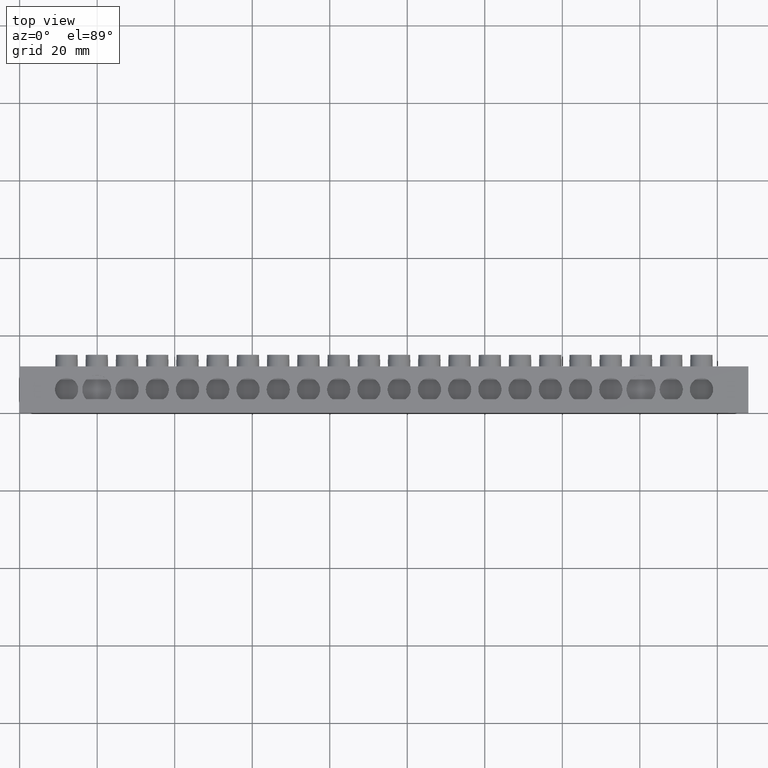
[diagram: clean part render]
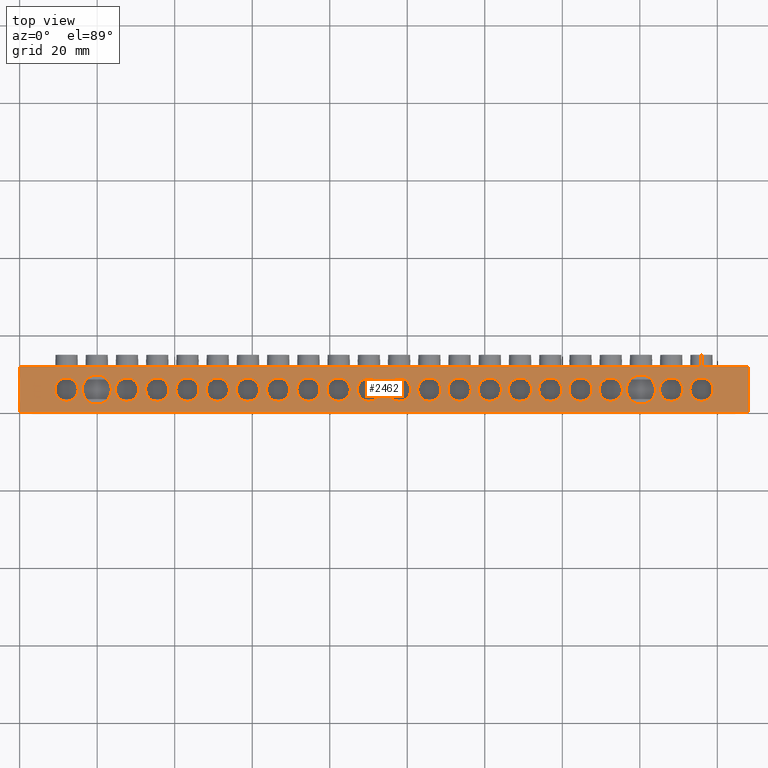
[diagram: same view with one face highlighted and labeled with its STEP entity id]
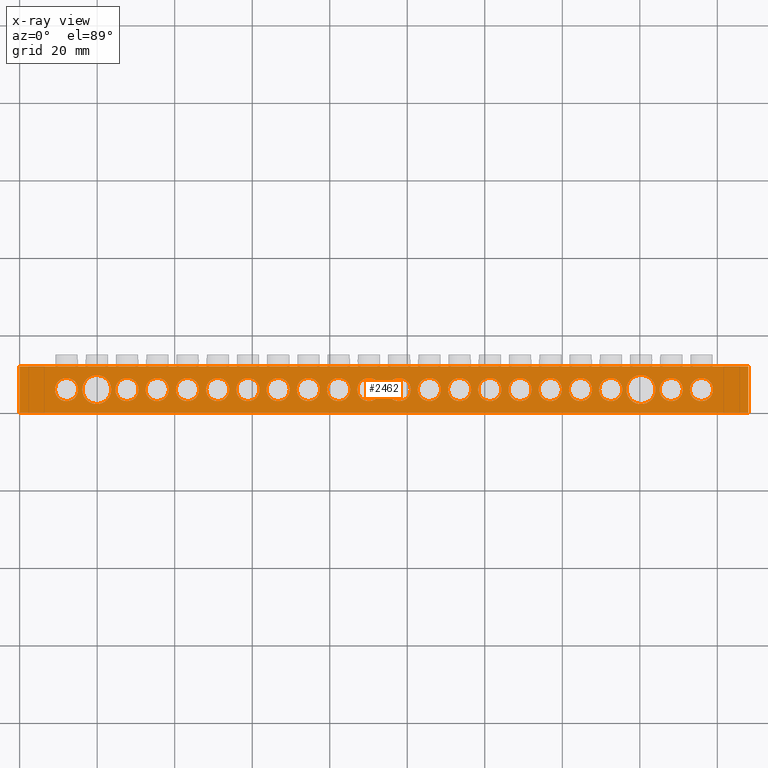
[diagram: x-ray of the same camera — body ghosted, the highlighted face saturated]
A machine part, top view. The second image highlights one B-rep face of the part: STEP entity #2462.
The next image is the same camera in x-ray: the body ghosted, the highlighted face saturated — about 0% of this face is hidden behind the body in this view.
In plain terms, the highlighted planar face has unit normal (0, 0, -1).
Its self-contained STEP definition (entity closure, byte-faithful):
#473 = CIRCLE ( 'NONE', #503, 2.999999999999988900 ) ;
#503 = AXIS2_PLACEMENT_3D ( 'NONE', #12412, #12397, #12405 ) ;
#523 = AXIS2_PLACEMENT_3D ( 'NONE', #12448, #12380, #12381 ) ;
#547 = CIRCLE ( 'NONE', #523, 2.999999999999995600 ) ;
#564 = CIRCLE ( 'NONE', #611, 2.999999999999988900 ) ;
#577 = CIRCLE ( 'NONE', #613, 2.999999999999988900 ) ;
#589 = ORIENTED_EDGE ( 'NONE', *, *, #1888, .F. ) ;
#590 = ORIENTED_EDGE ( 'NONE', *, *, #2530, .F. ) ;
#591 = ORIENTED_EDGE ( 'NONE', *, *, #2678, .F. ) ;
#601 = ORIENTED_EDGE ( 'NONE', *, *, #2506, .F. ) ;
#605 = ORIENTED_EDGE ( 'NONE', *, *, #2436, .F. ) ;
#611 = AXIS2_PLACEMENT_3D ( 'NONE', #12577, #12580, #12589 ) ;
#613 = AXIS2_PLACEMENT_3D ( 'NONE', #12554, #12596, #12523 ) ;
#621 = ORIENTED_EDGE ( 'NONE', *, *, #2680, .F. ) ;
#624 = ORIENTED_EDGE ( 'NONE', *, *, #2671, .F. ) ;
#626 = ORIENTED_EDGE ( 'NONE', *, *, #2500, .F. ) ;
#629 = ORIENTED_EDGE ( 'NONE', *, *, #2529, .F. ) ;
#630 = ORIENTED_EDGE ( 'NONE', *, *, #2710, .F. ) ;
#637 = ORIENTED_EDGE ( 'NONE', *, *, #2668, .F. ) ;
#639 = ORIENTED_EDGE ( 'NONE', *, *, #2478, .F. ) ;
#640 = ORIENTED_EDGE ( 'NONE', *, *, #2513, .F. ) ;
#644 = ORIENTED_EDGE ( 'NONE', *, *, #2666, .F. ) ;
#646 = ORIENTED_EDGE ( 'NONE', *, *, #2452, .F. ) ;
#649 = ORIENTED_EDGE ( 'NONE', *, *, #2688, .F. ) ;
#650 = ORIENTED_EDGE ( 'NONE', *, *, #2494, .F. ) ;
#652 = ORIENTED_EDGE ( 'NONE', *, *, #2498, .F. ) ;
#653 = ORIENTED_EDGE ( 'NONE', *, *, #1852, .F. ) ;
#654 = ORIENTED_EDGE ( 'NONE', *, *, #1851, .F. ) ;
#656 = ORIENTED_EDGE ( 'NONE', *, *, #2724, .F. ) ;
#660 = ORIENTED_EDGE ( 'NONE', *, *, #2176, .F. ) ;
#661 = ORIENTED_EDGE ( 'NONE', *, *, #2667, .F. ) ;
#662 = ORIENTED_EDGE ( 'NONE', *, *, #2665, .F. ) ;
#663 = ORIENTED_EDGE ( 'NONE', *, *, #2496, .F. ) ;
#667 = ORIENTED_EDGE ( 'NONE', *, *, #2716, .F. ) ;
#668 = ORIENTED_EDGE ( 'NONE', *, *, #2697, .F. ) ;
#669 = ORIENTED_EDGE ( 'NONE', *, *, #2197, .F. ) ;
#670 = ORIENTED_EDGE ( 'NONE', *, *, #2708, .F. ) ;
#672 = ORIENTED_EDGE ( 'NONE', *, *, #2196, .F. ) ;
#673 = ORIENTED_EDGE ( 'NONE', *, *, #2239, .F. ) ;
#677 = ORIENTED_EDGE ( 'NONE', *, *, #2184, .F. ) ;
#678 = ORIENTED_EDGE ( 'NONE', *, *, #1854, .T. ) ;
#682 = ORIENTED_EDGE ( 'NONE', *, *, #2164, .F. ) ;
#686 = ORIENTED_EDGE ( 'NONE', *, *, #2696, .T. ) ;
#694 = ORIENTED_EDGE ( 'NONE', *, *, #2181, .F. ) ;
#696 = ORIENTED_EDGE ( 'NONE', *, *, #2698, .F. ) ;
#701 = ORIENTED_EDGE ( 'NONE', *, *, #1853, .F. ) ;
#710 = ORIENTED_EDGE ( 'NONE', *, *, #2679, .T. ) ;
#711 = ORIENTED_EDGE ( 'NONE', *, *, #2165, .F. ) ;
#716 = ORIENTED_EDGE ( 'NONE', *, *, #2166, .F. ) ;
#721 = ORIENTED_EDGE ( 'NONE', *, *, #1859, .F. ) ;
#725 = ORIENTED_EDGE ( 'NONE', *, *, #2725, .F. ) ;
#727 = AXIS2_PLACEMENT_3D ( 'NONE', #6252, #6234, #6251 ) ;
#728 = ORIENTED_EDGE ( 'NONE', *, *, #1886, .F. ) ;
#730 = ORIENTED_EDGE ( 'NONE', *, *, #2159, .F. ) ;
#731 = ORIENTED_EDGE ( 'NONE', *, *, #9418, .T. ) ;
#732 = ORIENTED_EDGE ( 'NONE', *, *, #2217, .F. ) ;
#735 = ORIENTED_EDGE ( 'NONE', *, *, #2700, .F. ) ;
#738 = CIRCLE ( 'NONE', #750, 2.999999999999988900 ) ;
#750 = AXIS2_PLACEMENT_3D ( 'NONE', #6293, #6266, #6268 ) ;
#755 = CIRCLE ( 'NONE', #727, 2.999999999999995600 ) ;
#766 = CIRCLE ( 'NONE', #814, 2.999999999999988900 ) ;
#814 = AXIS2_PLACEMENT_3D ( 'NONE', #6270, #6271, #6289 ) ;
#818 = CIRCLE ( 'NONE', #820, 2.999999999999995600 ) ;
#820 = AXIS2_PLACEMENT_3D ( 'NONE', #6276, #6278, #6279 ) ;
#826 = CIRCLE ( 'NONE', #828, 2.999999999999988900 ) ;
#828 = AXIS2_PLACEMENT_3D ( 'NONE', #6057, #6158, #6183 ) ;
#907 = EDGE_LOOP ( 'NONE', ( #668, #694 ) ) ;
#912 = EDGE_LOOP ( 'NONE', ( #649, #626 ) ) ;
#919 = EDGE_LOOP ( 'NONE', ( #644, #646 ) ) ;
#923 = EDGE_LOOP ( 'NONE', ( #621, #652 ) ) ;
#942 = EDGE_LOOP ( 'NONE', ( #667, #673 ) ) ;
#949 = EDGE_LOOP ( 'NONE', ( #591, #732 ) ) ;
#953 = EDGE_LOOP ( 'NONE', ( #589, #650 ) ) ;
#965 = EDGE_LOOP ( 'NONE', ( #637, #601 ) ) ;
#969 = EDGE_LOOP ( 'NONE', ( #725, #682 ) ) ;
#972 = EDGE_LOOP ( 'NONE', ( #662, #660 ) ) ;
#973 = EDGE_LOOP ( 'NONE', ( #624, #663 ) ) ;
#975 = EDGE_LOOP ( 'NONE', ( #701, #711 ) ) ;
#982 = EDGE_LOOP ( 'NONE', ( #710, #678, #686, #731 ) ) ;
#983 = EDGE_LOOP ( 'NONE', ( #670, #730 ) ) ;
#992 = EDGE_LOOP ( 'NONE', ( #656, #640 ) ) ;
#993 = EDGE_LOOP ( 'NONE', ( #735, #672 ) ) ;
#994 = EDGE_LOOP ( 'NONE', ( #654, #590 ) ) ;
#997 = EDGE_LOOP ( 'NONE', ( #728, #677 ) ) ;
#998 = EDGE_LOOP ( 'NONE', ( #721, #669 ) ) ;
#1007 = EDGE_LOOP ( 'NONE', ( #630, #629 ) ) ;
#1010 = EDGE_LOOP ( 'NONE', ( #653, #639 ) ) ;
#1012 = EDGE_LOOP ( 'NONE', ( #661, #605 ) ) ;
#1017 = EDGE_LOOP ( 'NONE', ( #696, #716 ) ) ;
#1385 = VERTEX_POINT ( 'NONE', #11010 ) ;
#1412 = VERTEX_POINT ( 'NONE', #11032 ) ;
#1442 = VERTEX_POINT ( 'NONE', #11079 ) ;
#1462 = VERTEX_POINT ( 'NONE', #11084 ) ;
#1590 = DIRECTION ( 'NONE',  ( 0.0000000000000000000, 0.0000000000000000000, 1.000000000000000000 ) ) ;
#1591 = DIRECTION ( 'NONE',  ( 1.000000000000000000, 0.0000000000000000000, 0.0000000000000000000 ) ) ;
#1611 = CARTESIAN_POINT ( 'NONE',  ( 43.30000000000000400, 5.999999999999937800, 6.500000000000000000 ) ) ;
#1612 = DIRECTION ( 'NONE',  ( 1.000000000000000000, 0.0000000000000000000, 0.0000000000000000000 ) ) ;
#1614 = DIRECTION ( 'NONE',  ( 0.0000000000000000000, 0.0000000000000000000, 1.000000000000000000 ) ) ;
#1616 = CARTESIAN_POINT ( 'NONE',  ( 51.10000000000000900, 5.999999999999936100, 6.500000000000000000 ) ) ;
#1617 = DIRECTION ( 'NONE',  ( 0.0000000000000000000, 0.0000000000000000000, 1.000000000000000000 ) ) ;
#1618 = DIRECTION ( 'NONE',  ( 1.000000000000000000, 0.0000000000000000000, 0.0000000000000000000 ) ) ;
#1623 = CARTESIAN_POINT ( 'NONE',  ( 82.29999999999999700, 5.999999999999928900, 6.500000000000000000 ) ) ;
#1628 = DIRECTION ( 'NONE',  ( 0.0000000000000000000, 0.0000000000000000000, 1.000000000000000000 ) ) ;
#1632 = DIRECTION ( 'NONE',  ( 1.000000000000000000, 0.0000000000000000000, 0.0000000000000000000 ) ) ;
#1640 = CARTESIAN_POINT ( 'NONE',  ( 113.4999999999999900, 5.999999999999921800, 6.500000000000000000 ) ) ;
#1641 = DIRECTION ( 'NONE',  ( 0.0000000000000000000, 0.0000000000000000000, 1.000000000000000000 ) ) ;
#1642 = DIRECTION ( 'NONE',  ( 1.000000000000000000, 0.0000000000000000000, 0.0000000000000000000 ) ) ;
#1643 = CARTESIAN_POINT ( 'NONE',  ( 90.09999999999999400, 5.999999999999927200, 6.500000000000000000 ) ) ;
#1644 = DIRECTION ( 'NONE',  ( 0.0000000000000000000, 0.0000000000000000000, 1.000000000000000000 ) ) ;
#1646 = DIRECTION ( 'NONE',  ( 1.000000000000000000, 0.0000000000000000000, 0.0000000000000000000 ) ) ;
#1851 = EDGE_CURVE ( 'NONE', #10916, #10959, #5937, .T. ) ;
#1852 = EDGE_CURVE ( 'NONE', #10957, #10910, #5940, .T. ) ;
#1853 = EDGE_CURVE ( 'NONE', #10721, #10717, #5946, .T. ) ;
#1854 = EDGE_CURVE ( 'NONE', #1462, #1412, #11451, .T. ) ;
#1859 = EDGE_CURVE ( 'NONE', #10691, #10690, #5943, .T. ) ;
#1886 = EDGE_CURVE ( 'NONE', #10943, #10978, #5542, .T. ) ;
#1888 = EDGE_CURVE ( 'NONE', #10911, #10912, #5565, .T. ) ;
#2159 = EDGE_CURVE ( 'NONE', #10662, #10670, #5801, .T. ) ;
#2164 = EDGE_CURVE ( 'NONE', #10968, #10969, #5829, .T. ) ;
#2165 = EDGE_CURVE ( 'NONE', #10717, #10721, #5803, .T. ) ;
#2166 = EDGE_CURVE ( 'NONE', #10974, #10976, #5820, .T. ) ;
#2176 = EDGE_CURVE ( 'NONE', #10936, #10884, #5923, .T. ) ;
#2181 = EDGE_CURVE ( 'NONE', #10942, #10964, #7073, .T. ) ;
#2184 = EDGE_CURVE ( 'NONE', #10978, #10943, #7048, .T. ) ;
#2196 = EDGE_CURVE ( 'NONE', #10639, #10663, #7080, .T. ) ;
#2197 = EDGE_CURVE ( 'NONE', #10690, #10691, #7065, .T. ) ;
#2217 = EDGE_CURVE ( 'NONE', #10934, #10950, #7106, .T. ) ;
#2239 = EDGE_CURVE ( 'NONE', #10694, #10697, #7114, .T. ) ;
#2436 = EDGE_CURVE ( 'NONE', #10991, #10917, #6999, .T. ) ;
#2452 = EDGE_CURVE ( 'NONE', #10941, #10951, #6996, .T. ) ;
#2462 = ADVANCED_FACE ( 'NONE', ( #6179, #6160, #6173, #6150, #6163, #6153, #6167, #6168, #6144, #6132, #6135, #6176, #6140, #6178, #6149, #6155, #6134, #6154, #6177, #6164, #6148, #6136, #6139 ), #6180, .F. ) ;
#2478 = EDGE_CURVE ( 'NONE', #10910, #10957, #755, .T. ) ;
#2494 = EDGE_CURVE ( 'NONE', #10912, #10911, #738, .T. ) ;
#2496 = EDGE_CURVE ( 'NONE', #10875, #10897, #766, .T. ) ;
#2498 = EDGE_CURVE ( 'NONE', #10952, #10900, #818, .T. ) ;
#2500 = EDGE_CURVE ( 'NONE', #10883, #10961, #826, .T. ) ;
#2506 = EDGE_CURVE ( 'NONE', #10909, #10920, #547, .T. ) ;
#2513 = EDGE_CURVE ( 'NONE', #10955, #10944, #473, .T. ) ;
#2529 = EDGE_CURVE ( 'NONE', #10902, #10891, #564, .T. ) ;
#2530 = EDGE_CURVE ( 'NONE', #10959, #10916, #577, .T. ) ;
#2665 = EDGE_CURVE ( 'NONE', #10884, #10936, #5466, .T. ) ;
#2666 = EDGE_CURVE ( 'NONE', #10951, #10941, #5456, .T. ) ;
#2667 = EDGE_CURVE ( 'NONE', #10917, #10991, #5441, .T. ) ;
#2668 = EDGE_CURVE ( 'NONE', #10920, #10909, #5457, .T. ) ;
#2671 = EDGE_CURVE ( 'NONE', #10897, #10875, #5472, .T. ) ;
#2678 = EDGE_CURVE ( 'NONE', #10950, #10934, #5503, .T. ) ;
#2679 = EDGE_CURVE ( 'NONE', #1442, #1462, #6041, .T. ) ;
#2680 = EDGE_CURVE ( 'NONE', #10900, #10952, #5485, .T. ) ;
#2688 = EDGE_CURVE ( 'NONE', #10961, #10883, #5499, .T. ) ;
#2696 = EDGE_CURVE ( 'NONE', #1412, #1385, #3624, .T. ) ;
#2697 = EDGE_CURVE ( 'NONE', #10964, #10942, #5488, .T. ) ;
#2698 = EDGE_CURVE ( 'NONE', #10976, #10974, #5482, .T. ) ;
#2700 = EDGE_CURVE ( 'NONE', #10663, #10639, #9466, .T. ) ;
#2708 = EDGE_CURVE ( 'NONE', #10670, #10662, #9474, .T. ) ;
#2710 = EDGE_CURVE ( 'NONE', #10891, #10902, #9467, .T. ) ;
#2716 = EDGE_CURVE ( 'NONE', #10697, #10694, #9520, .T. ) ;
#2724 = EDGE_CURVE ( 'NONE', #10944, #10955, #9484, .T. ) ;
#2725 = EDGE_CURVE ( 'NONE', #10969, #10968, #9497, .T. ) ;
#3624 = LINE ( 'NONE', #3658, #5487 ) ;
#3638 = DIRECTION ( 'NONE',  ( 0.0000000000000000000, 1.000000000000000000, 0.0000000000000000000 ) ) ;
#3641 = DIRECTION ( 'NONE',  ( 0.0000000000000000000, 0.0000000000000000000, 1.000000000000000000 ) ) ;
#3650 = CARTESIAN_POINT ( 'NONE',  ( 97.90000000000000600, 5.999999999999925400, 6.500000000000000000 ) ) ;
#3658 = CARTESIAN_POINT ( 'NONE',  ( 188.0000000000000000, 0.0000000000000000000, 6.500000000000000000 ) ) ;
#3662 = DIRECTION ( 'NONE',  ( 1.000000000000000000, 0.0000000000000000000, 0.0000000000000000000 ) ) ;
#3668 = CARTESIAN_POINT ( 'NONE',  ( 152.5000000000000000, 5.999999999999913000, 6.500000000000000000 ) ) ;
#3670 = CARTESIAN_POINT ( 'NONE',  ( 129.0999999999999900, 5.999999999999918300, 6.500000000000000000 ) ) ;
#3674 = DIRECTION ( 'NONE',  ( 1.000000000000000000, 0.0000000000000000000, 0.0000000000000000000 ) ) ;
#3681 = DIRECTION ( 'NONE',  ( 0.0000000000000000000, 0.0000000000000000000, 1.000000000000000000 ) ) ;
#3684 = DIRECTION ( 'NONE',  ( 0.0000000000000000000, 0.0000000000000000000, 1.000000000000000000 ) ) ;
#3688 = DIRECTION ( 'NONE',  ( 0.0000000000000000000, 0.0000000000000000000, 1.000000000000000000 ) ) ;
#3697 = DIRECTION ( 'NONE',  ( 0.0000000000000000000, 0.0000000000000000000, 1.000000000000000000 ) ) ;
#3698 = DIRECTION ( 'NONE',  ( 1.000000000000000000, 0.0000000000000000000, 0.0000000000000000000 ) ) ;
#3701 = DIRECTION ( 'NONE',  ( 1.000000000000000000, 0.0000000000000000000, 0.0000000000000000000 ) ) ;
#3702 = CARTESIAN_POINT ( 'NONE',  ( 168.0999999999999900, 5.999999999999960000, 6.500000000000000000 ) ) ;
#3705 = DIRECTION ( 'NONE',  ( 1.000000000000000000, 0.0000000000000000000, 0.0000000000000000000 ) ) ;
#3707 = CARTESIAN_POINT ( 'NONE',  ( 160.3000000000000100, 5.999999999999915600, 6.500000000000000000 ) ) ;
#3721 = CARTESIAN_POINT ( 'NONE',  ( 12.10000000000000000, 6.000000000000000000, 6.500000000000000000 ) ) ;
#3736 = DIRECTION ( 'NONE',  ( 0.0000000000000000000, 0.0000000000000000000, 1.000000000000000000 ) ) ;
#3737 = DIRECTION ( 'NONE',  ( 1.000000000000000000, 0.0000000000000000000, 0.0000000000000000000 ) ) ;
#3744 = DIRECTION ( 'NONE',  ( 0.0000000000000000000, 0.0000000000000000000, 1.000000000000000000 ) ) ;
#3746 = DIRECTION ( 'NONE',  ( 1.000000000000000000, 0.0000000000000000000, 0.0000000000000000000 ) ) ;
#3752 = CARTESIAN_POINT ( 'NONE',  ( 66.69999999999998900, 5.999999999999932500, 6.500000000000000000 ) ) ;
#3760 = DIRECTION ( 'NONE',  ( 0.0000000000000000000, 0.0000000000000000000, 1.000000000000000000 ) ) ;
#3763 = DIRECTION ( 'NONE',  ( 1.000000000000000000, 0.0000000000000000000, 0.0000000000000000000 ) ) ;
#3768 = CARTESIAN_POINT ( 'NONE',  ( 74.50000000000000000, 5.999999999999930700, 6.500000000000000000 ) ) ;
#3781 = DIRECTION ( 'NONE',  ( 0.0000000000000000000, 0.0000000000000000000, 1.000000000000000000 ) ) ;
#3792 = DIRECTION ( 'NONE',  ( 1.000000000000000000, 0.0000000000000000000, 0.0000000000000000000 ) ) ;
#3804 = CARTESIAN_POINT ( 'NONE',  ( 144.6999999999999900, 5.999999999999914700, 6.500000000000000000 ) ) ;
#4841 = CARTESIAN_POINT ( 'NONE',  ( 144.6999999999999900, 5.999999999999914700, 6.500000000000000000 ) ) ;
#4851 = DIRECTION ( 'NONE',  ( 0.0000000000000000000, 0.0000000000000000000, 1.000000000000000000 ) ) ;
#4852 = DIRECTION ( 'NONE',  ( 1.000000000000000000, 0.0000000000000000000, 0.0000000000000000000 ) ) ;
#4858 = CARTESIAN_POINT ( 'NONE',  ( 175.9000000000000100, 6.000000000000015100, 6.500000000000000000 ) ) ;
#4859 = DIRECTION ( 'NONE',  ( 0.0000000000000000000, 0.0000000000000000000, 1.000000000000000000 ) ) ;
#4860 = CARTESIAN_POINT ( 'NONE',  ( 152.5000000000000000, 5.999999999999913000, 6.500000000000000000 ) ) ;
#4867 = DIRECTION ( 'NONE',  ( 1.000000000000000000, 0.0000000000000000000, 0.0000000000000000000 ) ) ;
#4875 = DIRECTION ( 'NONE',  ( 0.0000000000000000000, 0.0000000000000000000, 1.000000000000000000 ) ) ;
#4876 = DIRECTION ( 'NONE',  ( 1.000000000000000000, 0.0000000000000000000, 0.0000000000000000000 ) ) ;
#4891 = CARTESIAN_POINT ( 'NONE',  ( 113.4999999999999900, 5.999999999999921800, 6.500000000000000000 ) ) ;
#4892 = DIRECTION ( 'NONE',  ( 0.0000000000000000000, 0.0000000000000000000, 1.000000000000000000 ) ) ;
#4906 = DIRECTION ( 'NONE',  ( 1.000000000000000000, 0.0000000000000000000, 0.0000000000000000000 ) ) ;
#4913 = DIRECTION ( 'NONE',  ( 1.000000000000000000, 0.0000000000000000000, 0.0000000000000000000 ) ) ;
#4918 = CARTESIAN_POINT ( 'NONE',  ( 129.0999999999999900, 5.999999999999918300, 6.500000000000000000 ) ) ;
#4919 = DIRECTION ( 'NONE',  ( 0.0000000000000000000, 0.0000000000000000000, 1.000000000000000000 ) ) ;
#4921 = CARTESIAN_POINT ( 'NONE',  ( 19.90000000000000200, 6.000000000000000000, 6.500000000000000000 ) ) ;
#4923 = DIRECTION ( 'NONE',  ( 1.000000000000000000, 0.0000000000000000000, 0.0000000000000000000 ) ) ;
#4934 = DIRECTION ( 'NONE',  ( 1.000000000000000000, 0.0000000000000000000, 0.0000000000000000000 ) ) ;
#4936 = CARTESIAN_POINT ( 'NONE',  ( 136.9000000000000100, 5.999999999999916500, 6.500000000000000000 ) ) ;
#4938 = DIRECTION ( 'NONE',  ( 0.0000000000000000000, 0.0000000000000000000, 1.000000000000000000 ) ) ;
#4949 = CARTESIAN_POINT ( 'NONE',  ( 160.3000000000000100, 5.999999999999915600, 6.500000000000000000 ) ) ;
#4956 = DIRECTION ( 'NONE',  ( 0.0000000000000000000, 0.0000000000000000000, 1.000000000000000000 ) ) ;
#4958 = DIRECTION ( 'NONE',  ( 0.0000000000000000000, 0.0000000000000000000, 1.000000000000000000 ) ) ;
#4959 = DIRECTION ( 'NONE',  ( 1.000000000000000000, 0.0000000000000000000, 0.0000000000000000000 ) ) ;
#5024 = DIRECTION ( 'NONE',  ( 0.0000000000000000000, 0.0000000000000000000, 1.000000000000000000 ) ) ;
#5036 = CARTESIAN_POINT ( 'NONE',  ( 121.3000000000000000, 5.999999999999920100, 6.500000000000000000 ) ) ;
#5050 = DIRECTION ( 'NONE',  ( 1.000000000000000000, 0.0000000000000000000, 0.0000000000000000000 ) ) ;
#5078 = DIRECTION ( 'NONE',  ( 0.0000000000000000000, 0.0000000000000000000, 1.000000000000000000 ) ) ;
#5086 = CARTESIAN_POINT ( 'NONE',  ( 12.10000000000000000, 6.000000000000000000, 6.500000000000000000 ) ) ;
#5102 = DIRECTION ( 'NONE',  ( 1.000000000000000000, 0.0000000000000000000, 0.0000000000000000000 ) ) ;
#5416 = CARTESIAN_POINT ( 'NONE',  ( 168.0999999999999900, 5.999999999999960000, 6.500000000000000000 ) ) ;
#5417 = DIRECTION ( 'NONE',  ( 0.0000000000000000000, 0.0000000000000000000, 1.000000000000000000 ) ) ;
#5419 = DIRECTION ( 'NONE',  ( 1.000000000000000000, 0.0000000000000000000, 0.0000000000000000000 ) ) ;
#5439 = AXIS2_PLACEMENT_3D ( 'NONE', #1643, #1644, #1646 ) ;
#5441 = CIRCLE ( 'NONE', #5444, 2.999999999999995600 ) ;
#5444 = AXIS2_PLACEMENT_3D ( 'NONE', #1611, #1614, #1612 ) ;
#5456 = CIRCLE ( 'NONE', #5439, 2.999999999999988900 ) ;
#5457 = CIRCLE ( 'NONE', #5468, 2.999999999999995600 ) ;
#5466 = CIRCLE ( 'NONE', #5470, 2.999999999999988900 ) ;
#5468 = AXIS2_PLACEMENT_3D ( 'NONE', #1616, #1617, #1618 ) ;
#5470 = AXIS2_PLACEMENT_3D ( 'NONE', #1640, #1641, #1642 ) ;
#5472 = CIRCLE ( 'NONE', #5473, 2.999999999999988900 ) ;
#5473 = AXIS2_PLACEMENT_3D ( 'NONE', #1623, #1628, #1632 ) ;
#5475 = AXIS2_PLACEMENT_3D ( 'NONE', #14533, #9801, #9844 ) ;
#5482 = CIRCLE ( 'NONE', #9477, 3.000000000000002700 ) ;
#5483 = VECTOR ( 'NONE', #6413, 1000.000000000000000 ) ;
#5485 = CIRCLE ( 'NONE', #5493, 2.999999999999995600 ) ;
#5487 = VECTOR ( 'NONE', #3638, 1000.000000000000000 ) ;
#5488 = CIRCLE ( 'NONE', #5516, 3.000000000000002700 ) ;
#5493 = AXIS2_PLACEMENT_3D ( 'NONE', #14488, #1590, #1591 ) ;
#5499 = CIRCLE ( 'NONE', #5506, 2.999999999999988900 ) ;
#5503 = CIRCLE ( 'NONE', #5475, 2.999999999999988900 ) ;
#5506 = AXIS2_PLACEMENT_3D ( 'NONE', #3650, #3641, #3662 ) ;
#5516 = AXIS2_PLACEMENT_3D ( 'NONE', #3670, #3684, #3674 ) ;
#5542 = CIRCLE ( 'NONE', #5548, 3.000000000000002700 ) ;
#5547 = AXIS2_PLACEMENT_3D ( 'NONE', #11583, #11584, #11553 ) ;
#5548 = AXIS2_PLACEMENT_3D ( 'NONE', #11552, #11546, #11560 ) ;
#5565 = CIRCLE ( 'NONE', #5547, 2.999999999999988900 ) ;
#5793 = AXIS2_PLACEMENT_3D ( 'NONE', #4841, #4851, #4852 ) ;
#5801 = CIRCLE ( 'NONE', #5838, 3.000000000000002700 ) ;
#5803 = CIRCLE ( 'NONE', #5804, 3.000000000000002700 ) ;
#5804 = AXIS2_PLACEMENT_3D ( 'NONE', #4858, #4859, #4867 ) ;
#5820 = CIRCLE ( 'NONE', #5832, 3.000000000000002700 ) ;
#5829 = CIRCLE ( 'NONE', #5793, 3.000000000000002700 ) ;
#5832 = AXIS2_PLACEMENT_3D ( 'NONE', #4860, #4875, #4876 ) ;
#5838 = AXIS2_PLACEMENT_3D ( 'NONE', #5416, #5417, #5419 ) ;
#5923 = CIRCLE ( 'NONE', #5958, 2.999999999999988900 ) ;
#5930 = AXIS2_PLACEMENT_3D ( 'NONE', #11419, #11447, #11449 ) ;
#5934 = VECTOR ( 'NONE', #11453, 1000.000000000000000 ) ;
#5937 = CIRCLE ( 'NONE', #5938, 2.999999999999988900 ) ;
#5938 = AXIS2_PLACEMENT_3D ( 'NONE', #11435, #11445, #11420 ) ;
#5940 = CIRCLE ( 'NONE', #5942, 2.999999999999995600 ) ;
#5941 = AXIS2_PLACEMENT_3D ( 'NONE', #11499, #11485, #11484 ) ;
#5942 = AXIS2_PLACEMENT_3D ( 'NONE', #11439, #11421, #11422 ) ;
#5943 = CIRCLE ( 'NONE', #5941, 3.750000000000000000 ) ;
#5946 = CIRCLE ( 'NONE', #5930, 3.000000000000002700 ) ;
#5958 = AXIS2_PLACEMENT_3D ( 'NONE', #4891, #4892, #4906 ) ;
#6023 = CARTESIAN_POINT ( 'NONE',  ( 43.30000000000000400, 5.999999999999937800, 6.500000000000000000 ) ) ;
#6028 = DIRECTION ( 'NONE',  ( 1.000000000000000000, 0.0000000000000000000, 0.0000000000000000000 ) ) ;
#6038 = DIRECTION ( 'NONE',  ( 0.0000000000000000000, 0.0000000000000000000, 1.000000000000000000 ) ) ;
#6041 = LINE ( 'NONE', #6256, #5483 ) ;
#6057 = CARTESIAN_POINT ( 'NONE',  ( 97.90000000000000600, 5.999999999999925400, 6.500000000000000000 ) ) ;
#6116 = CARTESIAN_POINT ( 'NONE',  ( 90.09999999999999400, 5.999999999999927200, 6.500000000000000000 ) ) ;
#6122 = DIRECTION ( 'NONE',  ( 1.000000000000000000, 0.0000000000000000000, 0.0000000000000000000 ) ) ;
#6129 = DIRECTION ( 'NONE',  ( 0.0000000000000000000, 0.0000000000000000000, 1.000000000000000000 ) ) ;
#6131 = CARTESIAN_POINT ( 'NONE',  ( 0.0000000000000000000, 12.00000000000000000, 6.500000000000000000 ) ) ;
#6132 = FACE_BOUND ( 'NONE', #912, .T. ) ;
#6134 = FACE_BOUND ( 'NONE', #1017, .T. ) ;
#6135 = FACE_BOUND ( 'NONE', #994, .T. ) ;
#6136 = FACE_BOUND ( 'NONE', #942, .T. ) ;
#6137 = DIRECTION ( 'NONE',  ( 0.0000000000000000000, 0.0000000000000000000, -1.000000000000000000 ) ) ;
#6139 = FACE_OUTER_BOUND ( 'NONE', #982, .T. ) ;
#6140 = FACE_BOUND ( 'NONE', #949, .T. ) ;
#6144 = FACE_BOUND ( 'NONE', #919, .T. ) ;
#6148 = FACE_BOUND ( 'NONE', #998, .T. ) ;
#6149 = FACE_BOUND ( 'NONE', #997, .T. ) ;
#6150 = FACE_BOUND ( 'NONE', #965, .T. ) ;
#6153 = FACE_BOUND ( 'NONE', #1007, .T. ) ;
#6154 = FACE_BOUND ( 'NONE', #993, .T. ) ;
#6155 = FACE_BOUND ( 'NONE', #969, .T. ) ;
#6158 = DIRECTION ( 'NONE',  ( 0.0000000000000000000, 0.0000000000000000000, 1.000000000000000000 ) ) ;
#6160 = FACE_BOUND ( 'NONE', #923, .T. ) ;
#6163 = FACE_BOUND ( 'NONE', #953, .T. ) ;
#6164 = FACE_BOUND ( 'NONE', #975, .T. ) ;
#6165 = DIRECTION ( 'NONE',  ( -1.000000000000000000, 0.0000000000000000000, -0.0000000000000000000 ) ) ;
#6167 = FACE_BOUND ( 'NONE', #992, .T. ) ;
#6168 = FACE_BOUND ( 'NONE', #973, .T. ) ;
#6173 = FACE_BOUND ( 'NONE', #1012, .T. ) ;
#6176 = FACE_BOUND ( 'NONE', #972, .T. ) ;
#6177 = FACE_BOUND ( 'NONE', #983, .T. ) ;
#6178 = FACE_BOUND ( 'NONE', #907, .T. ) ;
#6179 = FACE_BOUND ( 'NONE', #1010, .T. ) ;
#6180 = PLANE ( 'NONE',  #7026 ) ;
#6183 = DIRECTION ( 'NONE',  ( 1.000000000000000000, 0.0000000000000000000, 0.0000000000000000000 ) ) ;
#6234 = DIRECTION ( 'NONE',  ( 0.0000000000000000000, 0.0000000000000000000, 1.000000000000000000 ) ) ;
#6251 = DIRECTION ( 'NONE',  ( 1.000000000000000000, 0.0000000000000000000, 0.0000000000000000000 ) ) ;
#6252 = CARTESIAN_POINT ( 'NONE',  ( 27.70000000000000300, 5.999999999999941400, 6.500000000000000000 ) ) ;
#6256 = CARTESIAN_POINT ( 'NONE',  ( 0.0000000000000000000, 0.0000000000000000000, 6.500000000000000000 ) ) ;
#6266 = DIRECTION ( 'NONE',  ( 0.0000000000000000000, 0.0000000000000000000, 1.000000000000000000 ) ) ;
#6268 = DIRECTION ( 'NONE',  ( 1.000000000000000000, 0.0000000000000000000, 0.0000000000000000000 ) ) ;
#6270 = CARTESIAN_POINT ( 'NONE',  ( 82.29999999999999700, 5.999999999999928900, 6.500000000000000000 ) ) ;
#6271 = DIRECTION ( 'NONE',  ( 0.0000000000000000000, 0.0000000000000000000, 1.000000000000000000 ) ) ;
#6276 = CARTESIAN_POINT ( 'NONE',  ( 35.50000000000000700, 5.999999999999939600, 6.500000000000000000 ) ) ;
#6278 = DIRECTION ( 'NONE',  ( 0.0000000000000000000, 0.0000000000000000000, 1.000000000000000000 ) ) ;
#6279 = DIRECTION ( 'NONE',  ( 1.000000000000000000, 0.0000000000000000000, 0.0000000000000000000 ) ) ;
#6289 = DIRECTION ( 'NONE',  ( 1.000000000000000000, 0.0000000000000000000, 0.0000000000000000000 ) ) ;
#6293 = CARTESIAN_POINT ( 'NONE',  ( 58.89999999999999100, 5.999999999999934300, 6.500000000000000000 ) ) ;
#6413 = DIRECTION ( 'NONE',  ( -0.0000000000000000000, -1.000000000000000000, -0.0000000000000000000 ) ) ;
#6996 = CIRCLE ( 'NONE', #7005, 2.999999999999988900 ) ;
#6999 = CIRCLE ( 'NONE', #7030, 2.999999999999995600 ) ;
#7005 = AXIS2_PLACEMENT_3D ( 'NONE', #6116, #6129, #6122 ) ;
#7026 = AXIS2_PLACEMENT_3D ( 'NONE', #6131, #6137, #6165 ) ;
#7030 = AXIS2_PLACEMENT_3D ( 'NONE', #6023, #6038, #6028 ) ;
#7035 = AXIS2_PLACEMENT_3D ( 'NONE', #4949, #4958, #4959 ) ;
#7044 = AXIS2_PLACEMENT_3D ( 'NONE', #4921, #4938, #4923 ) ;
#7047 = AXIS2_PLACEMENT_3D ( 'NONE', #4918, #4919, #4913 ) ;
#7048 = CIRCLE ( 'NONE', #7062, 3.000000000000002700 ) ;
#7062 = AXIS2_PLACEMENT_3D ( 'NONE', #4936, #4956, #4934 ) ;
#7065 = CIRCLE ( 'NONE', #7044, 3.750000000000000000 ) ;
#7073 = CIRCLE ( 'NONE', #7047, 3.000000000000002700 ) ;
#7080 = CIRCLE ( 'NONE', #7035, 3.750000000000003600 ) ;
#7086 = AXIS2_PLACEMENT_3D ( 'NONE', #5036, #5024, #5050 ) ;
#7106 = CIRCLE ( 'NONE', #7086, 2.999999999999988900 ) ;
#7114 = CIRCLE ( 'NONE', #7115, 2.999999999999999100 ) ;
#7115 = AXIS2_PLACEMENT_3D ( 'NONE', #5086, #5078, #5102 ) ;
#9418 = EDGE_CURVE ( 'NONE', #1385, #1442, #13996, .T. ) ;
#9462 = AXIS2_PLACEMENT_3D ( 'NONE', #3752, #3744, #3746 ) ;
#9466 = CIRCLE ( 'NONE', #9481, 3.750000000000003600 ) ;
#9467 = CIRCLE ( 'NONE', #9462, 2.999999999999988900 ) ;
#9474 = CIRCLE ( 'NONE', #9478, 3.000000000000002700 ) ;
#9477 = AXIS2_PLACEMENT_3D ( 'NONE', #3668, #3681, #3698 ) ;
#9478 = AXIS2_PLACEMENT_3D ( 'NONE', #3702, #3697, #3705 ) ;
#9481 = AXIS2_PLACEMENT_3D ( 'NONE', #3707, #3688, #3701 ) ;
#9484 = CIRCLE ( 'NONE', #9485, 2.999999999999988900 ) ;
#9485 = AXIS2_PLACEMENT_3D ( 'NONE', #3768, #3760, #3763 ) ;
#9497 = CIRCLE ( 'NONE', #9505, 3.000000000000002700 ) ;
#9505 = AXIS2_PLACEMENT_3D ( 'NONE', #3804, #3781, #3792 ) ;
#9520 = CIRCLE ( 'NONE', #9521, 2.999999999999999100 ) ;
#9521 = AXIS2_PLACEMENT_3D ( 'NONE', #3721, #3736, #3737 ) ;
#9801 = DIRECTION ( 'NONE',  ( 0.0000000000000000000, 0.0000000000000000000, 1.000000000000000000 ) ) ;
#9844 = DIRECTION ( 'NONE',  ( 1.000000000000000000, 0.0000000000000000000, 0.0000000000000000000 ) ) ;
#10639 = VERTEX_POINT ( 'NONE', #13029 ) ;
#10662 = VERTEX_POINT ( 'NONE', #13019 ) ;
#10663 = VERTEX_POINT ( 'NONE', #13021 ) ;
#10670 = VERTEX_POINT ( 'NONE', #13066 ) ;
#10690 = VERTEX_POINT ( 'NONE', #13059 ) ;
#10691 = VERTEX_POINT ( 'NONE', #13075 ) ;
#10694 = VERTEX_POINT ( 'NONE', #13069 ) ;
#10697 = VERTEX_POINT ( 'NONE', #13087 ) ;
#10717 = VERTEX_POINT ( 'NONE', #13073 ) ;
#10721 = VERTEX_POINT ( 'NONE', #13054 ) ;
#10875 = VERTEX_POINT ( 'NONE', #14293 ) ;
#10883 = VERTEX_POINT ( 'NONE', #14331 ) ;
#10884 = VERTEX_POINT ( 'NONE', #14317 ) ;
#10891 = VERTEX_POINT ( 'NONE', #14312 ) ;
#10897 = VERTEX_POINT ( 'NONE', #14287 ) ;
#10900 = VERTEX_POINT ( 'NONE', #14321 ) ;
#10902 = VERTEX_POINT ( 'NONE', #14319 ) ;
#10909 = VERTEX_POINT ( 'NONE', #14298 ) ;
#10910 = VERTEX_POINT ( 'NONE', #14299 ) ;
#10911 = VERTEX_POINT ( 'NONE', #14300 ) ;
#10912 = VERTEX_POINT ( 'NONE', #14284 ) ;
#10916 = VERTEX_POINT ( 'NONE', #14277 ) ;
#10917 = VERTEX_POINT ( 'NONE', #14305 ) ;
#10920 = VERTEX_POINT ( 'NONE', #14339 ) ;
#10934 = VERTEX_POINT ( 'NONE', #14291 ) ;
#10936 = VERTEX_POINT ( 'NONE', #14325 ) ;
#10941 = VERTEX_POINT ( 'NONE', #14281 ) ;
#10942 = VERTEX_POINT ( 'NONE', #14292 ) ;
#10943 = VERTEX_POINT ( 'NONE', #14371 ) ;
#10944 = VERTEX_POINT ( 'NONE', #14294 ) ;
#10950 = VERTEX_POINT ( 'NONE', #14341 ) ;
#10951 = VERTEX_POINT ( 'NONE', #14364 ) ;
#10952 = VERTEX_POINT ( 'NONE', #14382 ) ;
#10955 = VERTEX_POINT ( 'NONE', #14330 ) ;
#10957 = VERTEX_POINT ( 'NONE', #14342 ) ;
#10959 = VERTEX_POINT ( 'NONE', #14376 ) ;
#10961 = VERTEX_POINT ( 'NONE', #14379 ) ;
#10964 = VERTEX_POINT ( 'NONE', #14354 ) ;
#10968 = VERTEX_POINT ( 'NONE', #14345 ) ;
#10969 = VERTEX_POINT ( 'NONE', #14355 ) ;
#10974 = VERTEX_POINT ( 'NONE', #14381 ) ;
#10976 = VERTEX_POINT ( 'NONE', #14387 ) ;
#10978 = VERTEX_POINT ( 'NONE', #14346 ) ;
#10991 = VERTEX_POINT ( 'NONE', #14356 ) ;
#11010 = CARTESIAN_POINT ( 'NONE',  ( 188.0000000000000000, 12.00000000000000000, 6.500000000000000000 ) ) ;
#11032 = CARTESIAN_POINT ( 'NONE',  ( 188.0000000000000000, 0.0000000000000000000, 6.500000000000000000 ) ) ;
#11079 = CARTESIAN_POINT ( 'NONE',  ( 0.0000000000000000000, 12.00000000000000000, 6.500000000000000000 ) ) ;
#11084 = CARTESIAN_POINT ( 'NONE',  ( 0.0000000000000000000, 0.0000000000000000000, 6.500000000000000000 ) ) ;
#11419 = CARTESIAN_POINT ( 'NONE',  ( 175.9000000000000100, 6.000000000000015100, 6.500000000000000000 ) ) ;
#11420 = DIRECTION ( 'NONE',  ( 1.000000000000000000, 0.0000000000000000000, 0.0000000000000000000 ) ) ;
#11421 = DIRECTION ( 'NONE',  ( 0.0000000000000000000, 0.0000000000000000000, 1.000000000000000000 ) ) ;
#11422 = DIRECTION ( 'NONE',  ( 1.000000000000000000, 0.0000000000000000000, 0.0000000000000000000 ) ) ;
#11431 = CARTESIAN_POINT ( 'NONE',  ( 0.0000000000000000000, 0.0000000000000000000, 6.500000000000000000 ) ) ;
#11435 = CARTESIAN_POINT ( 'NONE',  ( 105.6999999999999900, 5.999999999999923600, 6.500000000000000000 ) ) ;
#11439 = CARTESIAN_POINT ( 'NONE',  ( 27.70000000000000300, 5.999999999999941400, 6.500000000000000000 ) ) ;
#11445 = DIRECTION ( 'NONE',  ( 0.0000000000000000000, 0.0000000000000000000, 1.000000000000000000 ) ) ;
#11447 = DIRECTION ( 'NONE',  ( 0.0000000000000000000, 0.0000000000000000000, 1.000000000000000000 ) ) ;
#11449 = DIRECTION ( 'NONE',  ( 1.000000000000000000, 0.0000000000000000000, 0.0000000000000000000 ) ) ;
#11451 = LINE ( 'NONE', #11431, #5934 ) ;
#11453 = DIRECTION ( 'NONE',  ( 1.000000000000000000, 0.0000000000000000000, 0.0000000000000000000 ) ) ;
#11484 = DIRECTION ( 'NONE',  ( 1.000000000000000000, 0.0000000000000000000, 0.0000000000000000000 ) ) ;
#11485 = DIRECTION ( 'NONE',  ( 0.0000000000000000000, 0.0000000000000000000, 1.000000000000000000 ) ) ;
#11499 = CARTESIAN_POINT ( 'NONE',  ( 19.90000000000000200, 6.000000000000000000, 6.500000000000000000 ) ) ;
#11546 = DIRECTION ( 'NONE',  ( 0.0000000000000000000, 0.0000000000000000000, 1.000000000000000000 ) ) ;
#11552 = CARTESIAN_POINT ( 'NONE',  ( 136.9000000000000100, 5.999999999999916500, 6.500000000000000000 ) ) ;
#11553 = DIRECTION ( 'NONE',  ( 1.000000000000000000, 0.0000000000000000000, 0.0000000000000000000 ) ) ;
#11560 = DIRECTION ( 'NONE',  ( 1.000000000000000000, 0.0000000000000000000, 0.0000000000000000000 ) ) ;
#11583 = CARTESIAN_POINT ( 'NONE',  ( 58.89999999999999100, 5.999999999999934300, 6.500000000000000000 ) ) ;
#11584 = DIRECTION ( 'NONE',  ( 0.0000000000000000000, 0.0000000000000000000, 1.000000000000000000 ) ) ;
#12380 = DIRECTION ( 'NONE',  ( 0.0000000000000000000, 0.0000000000000000000, 1.000000000000000000 ) ) ;
#12381 = DIRECTION ( 'NONE',  ( 1.000000000000000000, 0.0000000000000000000, 0.0000000000000000000 ) ) ;
#12397 = DIRECTION ( 'NONE',  ( 0.0000000000000000000, 0.0000000000000000000, 1.000000000000000000 ) ) ;
#12405 = DIRECTION ( 'NONE',  ( 1.000000000000000000, 0.0000000000000000000, 0.0000000000000000000 ) ) ;
#12412 = CARTESIAN_POINT ( 'NONE',  ( 74.50000000000000000, 5.999999999999930700, 6.500000000000000000 ) ) ;
#12448 = CARTESIAN_POINT ( 'NONE',  ( 51.10000000000000900, 5.999999999999936100, 6.500000000000000000 ) ) ;
#12523 = DIRECTION ( 'NONE',  ( 1.000000000000000000, 0.0000000000000000000, 0.0000000000000000000 ) ) ;
#12554 = CARTESIAN_POINT ( 'NONE',  ( 105.6999999999999900, 5.999999999999923600, 6.500000000000000000 ) ) ;
#12577 = CARTESIAN_POINT ( 'NONE',  ( 66.69999999999998900, 5.999999999999932500, 6.500000000000000000 ) ) ;
#12580 = DIRECTION ( 'NONE',  ( 0.0000000000000000000, 0.0000000000000000000, 1.000000000000000000 ) ) ;
#12589 = DIRECTION ( 'NONE',  ( 1.000000000000000000, 0.0000000000000000000, 0.0000000000000000000 ) ) ;
#12596 = DIRECTION ( 'NONE',  ( 0.0000000000000000000, 0.0000000000000000000, 1.000000000000000000 ) ) ;
#13019 = CARTESIAN_POINT ( 'NONE',  ( 165.0999999999999900, 5.999999999999960000, 6.500000000000000000 ) ) ;
#13021 = CARTESIAN_POINT ( 'NONE',  ( 164.0500000000000100, 5.999999999999915600, 6.500000000000000000 ) ) ;
#13029 = CARTESIAN_POINT ( 'NONE',  ( 156.5499999999999800, 5.999999999999916500, 6.500000000000000000 ) ) ;
#13054 = CARTESIAN_POINT ( 'NONE',  ( 178.9000000000000100, 6.000000000000015100, 6.500000000000000000 ) ) ;
#13059 = CARTESIAN_POINT ( 'NONE',  ( 16.15000000000000200, 6.000000000000000900, 6.500000000000000000 ) ) ;
#13066 = CARTESIAN_POINT ( 'NONE',  ( 171.0999999999999900, 5.999999999999960000, 6.500000000000000000 ) ) ;
#13069 = CARTESIAN_POINT ( 'NONE',  ( 9.099999999999999600, 6.000000000000000000, 6.500000000000000000 ) ) ;
#13073 = CARTESIAN_POINT ( 'NONE',  ( 172.9000000000000100, 6.000000000000015100, 6.500000000000000000 ) ) ;
#13075 = CARTESIAN_POINT ( 'NONE',  ( 23.65000000000000200, 6.000000000000000000, 6.500000000000000000 ) ) ;
#13087 = CARTESIAN_POINT ( 'NONE',  ( 15.10000000000000000, 6.000000000000000000, 6.500000000000000000 ) ) ;
#13974 = CARTESIAN_POINT ( 'NONE',  ( 0.0000000000000000000, 12.00000000000000000, 6.500000000000000000 ) ) ;
#13983 = DIRECTION ( 'NONE',  ( -1.000000000000000000, -0.0000000000000000000, -0.0000000000000000000 ) ) ;
#13996 = LINE ( 'NONE', #13974, #14114 ) ;
#14114 = VECTOR ( 'NONE', #13983, 1000.000000000000000 ) ;
#14277 = CARTESIAN_POINT ( 'NONE',  ( 108.6999999999999700, 5.999999999999923600, 6.500000000000000000 ) ) ;
#14281 = CARTESIAN_POINT ( 'NONE',  ( 87.10000000000000900, 5.999999999999927200, 6.500000000000000000 ) ) ;
#14284 = CARTESIAN_POINT ( 'NONE',  ( 55.90000000000000600, 5.999999999999934300, 6.500000000000000000 ) ) ;
#14287 = CARTESIAN_POINT ( 'NONE',  ( 85.29999999999998300, 5.999999999999928900, 6.500000000000000000 ) ) ;
#14291 = CARTESIAN_POINT ( 'NONE',  ( 118.3000000000000000, 5.999999999999920100, 6.500000000000000000 ) ) ;
#14292 = CARTESIAN_POINT ( 'NONE',  ( 126.0999999999999900, 5.999999999999918300, 6.500000000000000000 ) ) ;
#14293 = CARTESIAN_POINT ( 'NONE',  ( 79.30000000000001100, 5.999999999999928900, 6.500000000000000000 ) ) ;
#14294 = CARTESIAN_POINT ( 'NONE',  ( 77.49999999999998600, 5.999999999999930700, 6.500000000000000000 ) ) ;
#14298 = CARTESIAN_POINT ( 'NONE',  ( 48.10000000000000900, 5.999999999999936100, 6.500000000000000000 ) ) ;
#14299 = CARTESIAN_POINT ( 'NONE',  ( 24.70000000000000600, 5.999999999999941400, 6.500000000000000000 ) ) ;
#14300 = CARTESIAN_POINT ( 'NONE',  ( 61.89999999999998400, 5.999999999999934300, 6.500000000000000000 ) ) ;
#14305 = CARTESIAN_POINT ( 'NONE',  ( 46.30000000000000400, 5.999999999999937800, 6.500000000000000000 ) ) ;
#14312 = CARTESIAN_POINT ( 'NONE',  ( 69.69999999999998900, 5.999999999999932500, 6.500000000000000000 ) ) ;
#14317 = CARTESIAN_POINT ( 'NONE',  ( 116.4999999999999700, 5.999999999999921800, 6.500000000000000000 ) ) ;
#14319 = CARTESIAN_POINT ( 'NONE',  ( 63.70000000000001000, 5.999999999999932500, 6.500000000000000000 ) ) ;
#14321 = CARTESIAN_POINT ( 'NONE',  ( 38.50000000000000000, 5.999999999999939600, 6.500000000000000000 ) ) ;
#14325 = CARTESIAN_POINT ( 'NONE',  ( 110.5000000000000000, 5.999999999999921800, 6.500000000000000000 ) ) ;
#14330 = CARTESIAN_POINT ( 'NONE',  ( 71.50000000000001400, 5.999999999999930700, 6.500000000000000000 ) ) ;
#14331 = CARTESIAN_POINT ( 'NONE',  ( 94.90000000000000600, 5.999999999999925400, 6.500000000000000000 ) ) ;
#14339 = CARTESIAN_POINT ( 'NONE',  ( 54.10000000000000100, 5.999999999999936100, 6.500000000000000000 ) ) ;
#14341 = CARTESIAN_POINT ( 'NONE',  ( 124.2999999999999800, 5.999999999999920100, 6.500000000000000000 ) ) ;
#14342 = CARTESIAN_POINT ( 'NONE',  ( 30.69999999999999900, 5.999999999999941400, 6.500000000000000000 ) ) ;
#14345 = CARTESIAN_POINT ( 'NONE',  ( 141.6999999999999900, 5.999999999999914700, 6.500000000000000000 ) ) ;
#14346 = CARTESIAN_POINT ( 'NONE',  ( 133.8999999999999800, 5.999999999999916500, 6.500000000000000000 ) ) ;
#14354 = CARTESIAN_POINT ( 'NONE',  ( 132.0999999999999900, 5.999999999999918300, 6.500000000000000000 ) ) ;
#14355 = CARTESIAN_POINT ( 'NONE',  ( 147.6999999999999900, 5.999999999999914700, 6.500000000000000000 ) ) ;
#14356 = CARTESIAN_POINT ( 'NONE',  ( 40.30000000000001100, 5.999999999999937800, 6.500000000000000000 ) ) ;
#14364 = CARTESIAN_POINT ( 'NONE',  ( 93.09999999999999400, 5.999999999999927200, 6.500000000000000000 ) ) ;
#14371 = CARTESIAN_POINT ( 'NONE',  ( 139.9000000000000100, 5.999999999999916500, 6.500000000000000000 ) ) ;
#14376 = CARTESIAN_POINT ( 'NONE',  ( 102.7000000000000000, 5.999999999999923600, 6.500000000000000000 ) ) ;
#14379 = CARTESIAN_POINT ( 'NONE',  ( 100.8999999999999900, 5.999999999999925400, 6.500000000000000000 ) ) ;
#14381 = CARTESIAN_POINT ( 'NONE',  ( 149.5000000000000000, 5.999999999999913000, 6.500000000000000000 ) ) ;
#14382 = CARTESIAN_POINT ( 'NONE',  ( 32.50000000000000700, 5.999999999999939600, 6.500000000000000000 ) ) ;
#14387 = CARTESIAN_POINT ( 'NONE',  ( 155.5000000000000000, 5.999999999999913000, 6.500000000000000000 ) ) ;
#14488 = CARTESIAN_POINT ( 'NONE',  ( 35.50000000000000700, 5.999999999999939600, 6.500000000000000000 ) ) ;
#14533 = CARTESIAN_POINT ( 'NONE',  ( 121.3000000000000000, 5.999999999999920100, 6.500000000000000000 ) ) ;